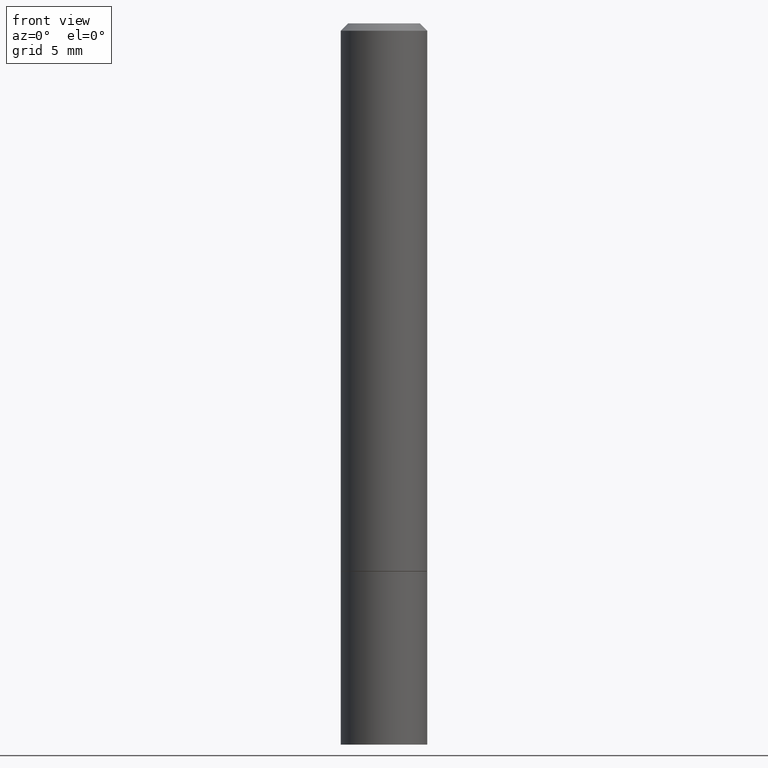
[diagram: clean part render]
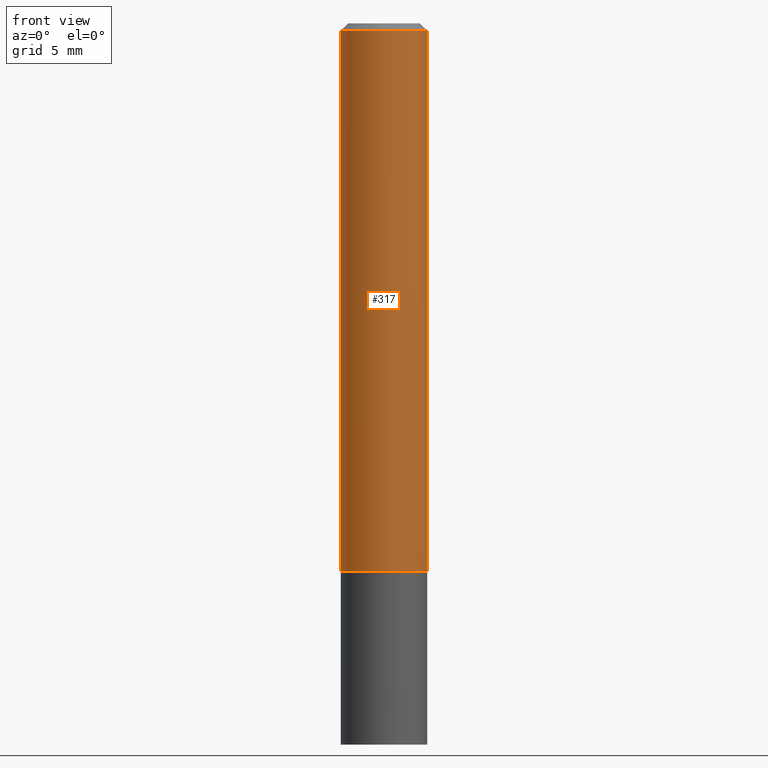
[diagram: same view with one face highlighted and labeled with its STEP entity id]
A machine part, front view. The second image highlights one B-rep face of the part: STEP entity #317.
In plain terms, the highlighted cylindrical surface (partial cylindrical patch) has radius 2.9997 mm, axis along (-0, 0, 1).
Its self-contained STEP definition (entity closure, byte-faithful):
#13 = DIRECTION ( 'NONE',  ( 1.000000000000000000, -6.982962677686266711E-15, 0.000000000000000000 ) ) ;
#20 = DIRECTION ( 'NONE',  ( 1.000000000000000000, -6.982962677686266711E-15, 4.876176775795935232E-29 ) ) ;
#31 = ORIENTED_EDGE ( 'NONE', *, *, #169, .F. ) ;
#32 = EDGE_CURVE ( 'NONE', #83, #117, #202, .T. ) ;
#55 = AXIS2_PLACEMENT_3D ( 'NONE', #149, #266, #13 ) ;
#62 = DIRECTION ( 'NONE',  ( 1.000000000000000000, -6.982962677686265133E-15, 0.000000000000000000 ) ) ;
#83 = VERTEX_POINT ( 'NONE', #153 ) ;
#99 = ORIENTED_EDGE ( 'NONE', *, *, #337, .F. ) ;
#104 = DIRECTION ( 'NONE',  ( -2.445468806185136877E-29, 3.491481338843145188E-15, 1.000000000000000000 ) ) ;
#117 = VERTEX_POINT ( 'NONE', #234 ) ;
#123 = DIRECTION ( 'NONE',  ( -2.445468806185136597E-29, 3.491481338843145583E-15, 1.000000000000000000 ) ) ;
#134 = CARTESIAN_POINT ( 'NONE',  ( 0.1180999999999998995, -8.246878922347473751E-16, 5.758764772214994835E-30 ) ) ;
#142 = VERTEX_POINT ( 'NONE', #349 ) ;
#146 = CARTESIAN_POINT ( 'NONE',  ( 3.656220412127397346E-29, -5.220113749704386653E-15, -1.495099999999999874 ) ) ;
#149 = CARTESIAN_POINT ( 'NONE',  ( 4.890937612370282792E-31, -6.982962677686303935E-17, -0.02000000000000003858 ) ) ;
#153 = CARTESIAN_POINT ( 'NONE',  ( -0.1180999999999999966, -1.805820717307944806E-15, -1.495099999999999874 ) ) ;
#159 = LINE ( 'NONE', #134, #355 ) ;
#169 = EDGE_CURVE ( 'NONE', #199, #142, #215, .T. ) ;
#199 = VERTEX_POINT ( 'NONE', #274 ) ;
#202 = CIRCLE ( 'NONE', #290, 0.1180999999999999966 ) ;
#214 = CARTESIAN_POINT ( 'NONE',  ( 0.000000000000000000, 0.000000000000000000, 0.000000000000000000 ) ) ;
#215 = CIRCLE ( 'NONE', #55, 0.1180999999999997746 ) ;
#234 = CARTESIAN_POINT ( 'NONE',  ( 0.1180999999999999966, -6.044801641939134915E-15, -1.495099999999999874 ) ) ;
#237 = EDGE_CURVE ( 'NONE', #117, #142, #159, .T. ) ;
#246 = LINE ( 'NONE', #361, #297 ) ;
#257 = ORIENTED_EDGE ( 'NONE', *, *, #237, .T. ) ;
#266 = DIRECTION ( 'NONE',  ( -2.445468806185136597E-29, 3.491481338843145583E-15, 1.000000000000000000 ) ) ;
#273 = FACE_OUTER_BOUND ( 'NONE', #343, .T. ) ;
#274 = CARTESIAN_POINT ( 'NONE',  ( -0.1180999999999997746, 7.548582654578833867E-16, -0.02000000000000003858 ) ) ;
#277 = AXIS2_PLACEMENT_3D ( 'NONE', #214, #333, #20 ) ;
#290 = AXIS2_PLACEMENT_3D ( 'NONE', #146, #123, #62 ) ;
#292 = ORIENTED_EDGE ( 'NONE', *, *, #32, .T. ) ;
#297 = VECTOR ( 'NONE', #335, 39.37007874015748143 ) ;
#317 = ADVANCED_FACE ( 'NONE', ( #273 ), #360, .T. ) ;
#333 = DIRECTION ( 'NONE',  ( -2.445468806185136597E-29, 3.491481338843145583E-15, 1.000000000000000000 ) ) ;
#335 = DIRECTION ( 'NONE',  ( -2.445468806185136877E-29, 3.491481338843145188E-15, 1.000000000000000000 ) ) ;
#337 = EDGE_CURVE ( 'NONE', #83, #199, #246, .T. ) ;
#343 = EDGE_LOOP ( 'NONE', ( #99, #292, #257, #31 ) ) ;
#349 = CARTESIAN_POINT ( 'NONE',  ( 0.1180999999999997746, -8.800544403136793583E-16, -0.02000000000000003858 ) ) ;
#355 = VECTOR ( 'NONE', #104, 39.37007874015748143 ) ;
#360 = CYLINDRICAL_SURFACE ( 'NONE', #277, 0.1180999999999998995 ) ;
#361 = CARTESIAN_POINT ( 'NONE',  ( -0.1180999999999998995, 8.391509709326776054E-16, -5.809262341591038879E-30 ) ) ;